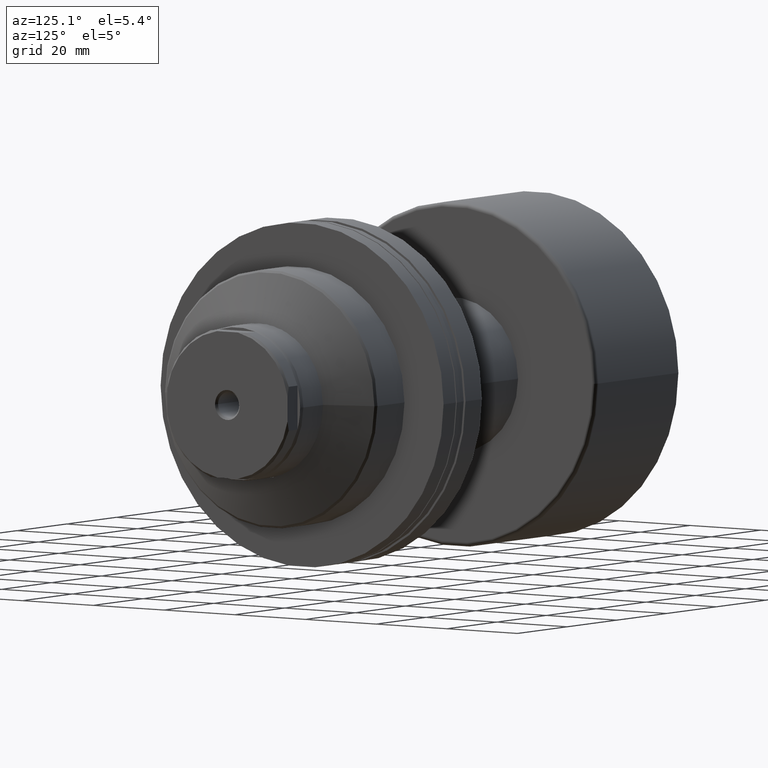
[diagram: clean part render]
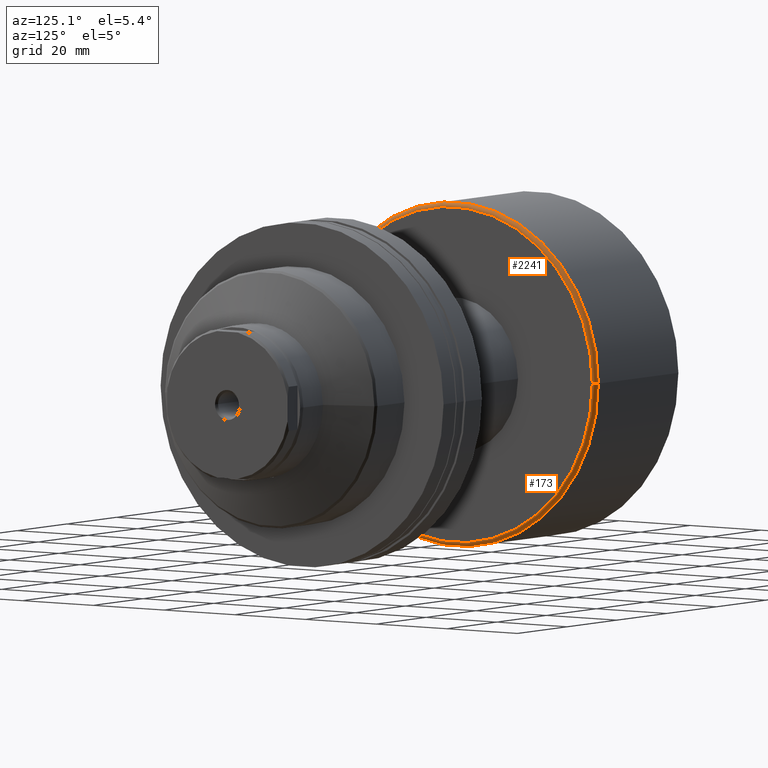
[diagram: same view with one multi-face feature highlighted, each face labeled with its STEP entity id]
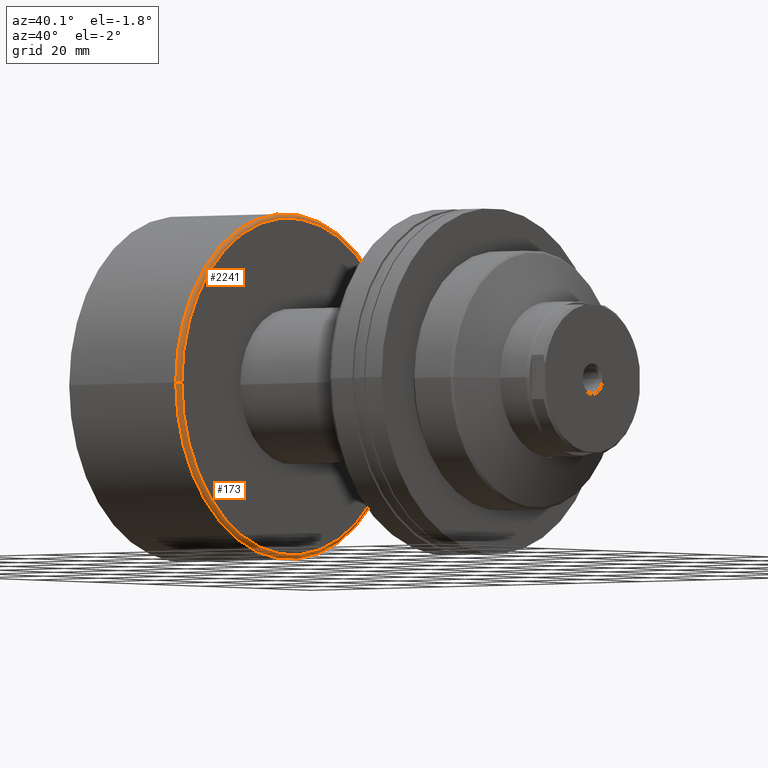
[diagram: same view with one multi-face feature highlighted, each face labeled with its STEP entity id]
A machine part, auxiliary view. The highlighted faces form ONE feature: a constant-radius fillet chain: 2 tangent blend faces with common blend radius 1 mm. The faces share edges in the B-rep.
A second angle (auxiliary view) of the same feature is appended — it is thin or edge-on in the first view.
Their STEP definitions:
[1] entity #173 (Torus):
#38 = ORIENTED_EDGE ( 'NONE', *, *, #1643, .F. ) ;
#50 = CIRCLE ( 'NONE', #1025, 38.99999999999999289 ) ;
#125 = CARTESIAN_POINT ( 'NONE',  ( 33.70000000000000284, 0.000000000000000000, 0.000000000000000000 ) ) ;
#142 = VERTEX_POINT ( 'NONE', #1332 ) ;
#150 = DIRECTION ( 'NONE',  ( -1.000000000000000000, -1.069542322069065801E-17, -0.000000000000000000 ) ) ;
#173 = ADVANCED_FACE ( 'NONE', ( #657 ), #2220, .T. ) ;
#182 = AXIS2_PLACEMENT_3D ( 'NONE', #302, #474, #2051 ) ;
#302 = CARTESIAN_POINT ( 'NONE',  ( 33.70000000000000284, 38.99999999999999289, 4.776122516674677089E-15 ) ) ;
#338 = CARTESIAN_POINT ( 'NONE',  ( 34.70000000000000284, 38.99999999999999289, 4.837354856632044663E-15 ) ) ;
#378 = CARTESIAN_POINT ( 'NONE',  ( 34.70000000000000284, 3.711311857579658694E-16, 0.000000000000000000 ) ) ;
#405 = CARTESIAN_POINT ( 'NONE',  ( 34.70000000000000284, -38.99999999999999289, 0.000000000000000000 ) ) ;
#420 = DIRECTION ( 'NONE',  ( -1.000000000000000000, 0.000000000000000000, 0.000000000000000000 ) ) ;
#474 = DIRECTION ( 'NONE',  ( 1.309811581274509052E-33, -1.224646799147353207E-16, 1.000000000000000000 ) ) ;
#477 = AXIS2_PLACEMENT_3D ( 'NONE', #1294, #982, #420 ) ;
#533 = ORIENTED_EDGE ( 'NONE', *, *, #949, .T. ) ;
#536 = DIRECTION ( 'NONE',  ( 0.000000000000000000, -1.000000000000000000, 0.000000000000000000 ) ) ;
#657 = FACE_OUTER_BOUND ( 'NONE', #1050, .T. ) ;
#685 = ORIENTED_EDGE ( 'NONE', *, *, #2049, .T. ) ;
#753 = DIRECTION ( 'NONE',  ( -1.000000000000000000, -1.069542322069065801E-17, -0.000000000000000000 ) ) ;
#870 = DIRECTION ( 'NONE',  ( 1.069542322069065801E-17, -1.000000000000000000, 0.000000000000000000 ) ) ;
#949 = EDGE_CURVE ( 'NONE', #1478, #142, #1891, .T. ) ;
#982 = DIRECTION ( 'NONE',  ( 0.000000000000000000, 0.000000000000000000, -1.000000000000000000 ) ) ;
#995 = AXIS2_PLACEMENT_3D ( 'NONE', #125, #150, #870 ) ;
#1025 = AXIS2_PLACEMENT_3D ( 'NONE', #378, #753, #2173 ) ;
#1050 = EDGE_LOOP ( 'NONE', ( #38, #685, #533, #1151 ) ) ;
#1146 = EDGE_CURVE ( 'NONE', #1578, #142, #1710, .T. ) ;
#1151 = ORIENTED_EDGE ( 'NONE', *, *, #1146, .F. ) ;
#1281 = VERTEX_POINT ( 'NONE', #338 ) ;
#1294 = CARTESIAN_POINT ( 'NONE',  ( 33.70000000000000284, -38.99999999999999289, 0.000000000000000000 ) ) ;
#1317 = CIRCLE ( 'NONE', #182, 1.000000000000000888 ) ;
#1332 = CARTESIAN_POINT ( 'NONE',  ( 33.70000000000000284, -39.99999999999999289, 0.000000000000000000 ) ) ;
#1335 = CARTESIAN_POINT ( 'NONE',  ( 33.70000000000000284, 39.99999999999999289, 4.898587196589412237E-15 ) ) ;
#1388 = DIRECTION ( 'NONE',  ( -1.000000000000000000, -1.069542322069065801E-17, -0.000000000000000000 ) ) ;
#1478 = VERTEX_POINT ( 'NONE', #405 ) ;
#1577 = CARTESIAN_POINT ( 'NONE',  ( 33.70000000000000284, 3.604357625372751759E-16, 0.000000000000000000 ) ) ;
#1578 = VERTEX_POINT ( 'NONE', #1335 ) ;
#1643 = EDGE_CURVE ( 'NONE', #1281, #1578, #1317, .T. ) ;
#1710 = CIRCLE ( 'NONE', #1740, 39.99999999999999289 ) ;
#1740 = AXIS2_PLACEMENT_3D ( 'NONE', #1577, #1388, #536 ) ;
#1891 = CIRCLE ( 'NONE', #477, 1.000000000000000888 ) ;
#2049 = EDGE_CURVE ( 'NONE', #1281, #1478, #50, .T. ) ;
#2051 = DIRECTION ( 'NONE',  ( 0.000000000000000000, -1.000000000000000000, -1.224646799147357151E-16 ) ) ;
#2173 = DIRECTION ( 'NONE',  ( 0.000000000000000000, -1.000000000000000000, 0.000000000000000000 ) ) ;
#2220 = TOROIDAL_SURFACE ( 'NONE', #995, 38.99999999999999289, 1.000000000000000888 ) ;
[2] entity #2241 (Torus):
#26 = DIRECTION ( 'NONE',  ( -1.000000000000000000, -1.069542322069065801E-17, -0.000000000000000000 ) ) ;
#142 = VERTEX_POINT ( 'NONE', #1332 ) ;
#182 = AXIS2_PLACEMENT_3D ( 'NONE', #302, #474, #2051 ) ;
#302 = CARTESIAN_POINT ( 'NONE',  ( 33.70000000000000284, 38.99999999999999289, 4.776122516674677089E-15 ) ) ;
#317 = ORIENTED_EDGE ( 'NONE', *, *, #1643, .T. ) ;
#338 = CARTESIAN_POINT ( 'NONE',  ( 34.70000000000000284, 38.99999999999999289, 4.837354856632044663E-15 ) ) ;
#341 = ORIENTED_EDGE ( 'NONE', *, *, #1457, .F. ) ;
#405 = CARTESIAN_POINT ( 'NONE',  ( 34.70000000000000284, -38.99999999999999289, 0.000000000000000000 ) ) ;
#420 = DIRECTION ( 'NONE',  ( -1.000000000000000000, 0.000000000000000000, 0.000000000000000000 ) ) ;
#445 = CIRCLE ( 'NONE', #741, 38.99999999999999289 ) ;
#474 = DIRECTION ( 'NONE',  ( 1.309811581274509052E-33, -1.224646799147353207E-16, 1.000000000000000000 ) ) ;
#477 = AXIS2_PLACEMENT_3D ( 'NONE', #1294, #982, #420 ) ;
#517 = DIRECTION ( 'NONE',  ( -1.000000000000000000, -1.069542322069065801E-17, -0.000000000000000000 ) ) ;
#613 = EDGE_LOOP ( 'NONE', ( #996, #317, #341, #2023 ) ) ;
#653 = CARTESIAN_POINT ( 'NONE',  ( 34.70000000000000284, 3.711311857579658694E-16, 0.000000000000000000 ) ) ;
#689 = CARTESIAN_POINT ( 'NONE',  ( 33.70000000000000284, 0.000000000000000000, 0.000000000000000000 ) ) ;
#741 = AXIS2_PLACEMENT_3D ( 'NONE', #653, #1175, #2085 ) ;
#746 = CARTESIAN_POINT ( 'NONE',  ( 33.70000000000000284, 3.604357625372751759E-16, 0.000000000000000000 ) ) ;
#949 = EDGE_CURVE ( 'NONE', #1478, #142, #1891, .T. ) ;
#982 = DIRECTION ( 'NONE',  ( 0.000000000000000000, 0.000000000000000000, -1.000000000000000000 ) ) ;
#996 = ORIENTED_EDGE ( 'NONE', *, *, #1216, .T. ) ;
#1045 = FACE_OUTER_BOUND ( 'NONE', #613, .T. ) ;
#1175 = DIRECTION ( 'NONE',  ( -1.000000000000000000, -1.069542322069065801E-17, -0.000000000000000000 ) ) ;
#1216 = EDGE_CURVE ( 'NONE', #1478, #1281, #445, .T. ) ;
#1240 = DIRECTION ( 'NONE',  ( 1.069542322069065801E-17, -1.000000000000000000, 0.000000000000000000 ) ) ;
#1281 = VERTEX_POINT ( 'NONE', #338 ) ;
#1294 = CARTESIAN_POINT ( 'NONE',  ( 33.70000000000000284, -38.99999999999999289, 0.000000000000000000 ) ) ;
#1301 = DIRECTION ( 'NONE',  ( 0.000000000000000000, -1.000000000000000000, 0.000000000000000000 ) ) ;
#1317 = CIRCLE ( 'NONE', #182, 1.000000000000000888 ) ;
#1332 = CARTESIAN_POINT ( 'NONE',  ( 33.70000000000000284, -39.99999999999999289, 0.000000000000000000 ) ) ;
#1335 = CARTESIAN_POINT ( 'NONE',  ( 33.70000000000000284, 39.99999999999999289, 4.898587196589412237E-15 ) ) ;
#1457 = EDGE_CURVE ( 'NONE', #142, #1578, #1564, .T. ) ;
#1478 = VERTEX_POINT ( 'NONE', #405 ) ;
#1564 = CIRCLE ( 'NONE', #1685, 39.99999999999999289 ) ;
#1578 = VERTEX_POINT ( 'NONE', #1335 ) ;
#1643 = EDGE_CURVE ( 'NONE', #1281, #1578, #1317, .T. ) ;
#1669 = TOROIDAL_SURFACE ( 'NONE', #1954, 38.99999999999999289, 1.000000000000000888 ) ;
#1685 = AXIS2_PLACEMENT_3D ( 'NONE', #746, #26, #1301 ) ;
#1891 = CIRCLE ( 'NONE', #477, 1.000000000000000888 ) ;
#1954 = AXIS2_PLACEMENT_3D ( 'NONE', #689, #517, #1240 ) ;
#2023 = ORIENTED_EDGE ( 'NONE', *, *, #949, .F. ) ;
#2051 = DIRECTION ( 'NONE',  ( 0.000000000000000000, -1.000000000000000000, -1.224646799147357151E-16 ) ) ;
#2085 = DIRECTION ( 'NONE',  ( 0.000000000000000000, -1.000000000000000000, 0.000000000000000000 ) ) ;
#2241 = ADVANCED_FACE ( 'NONE', ( #1045 ), #1669, .T. ) ;